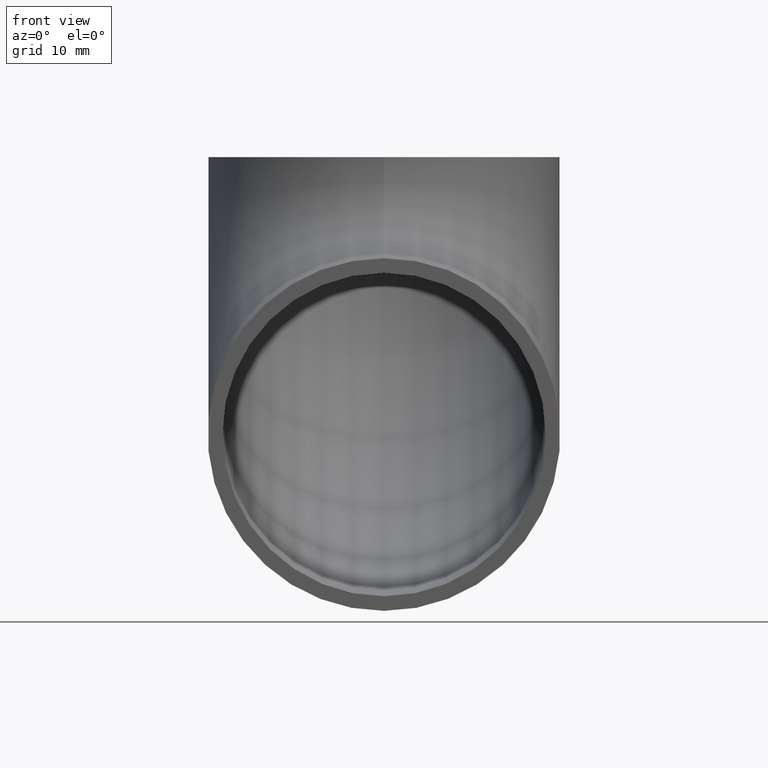
[diagram: clean part render]
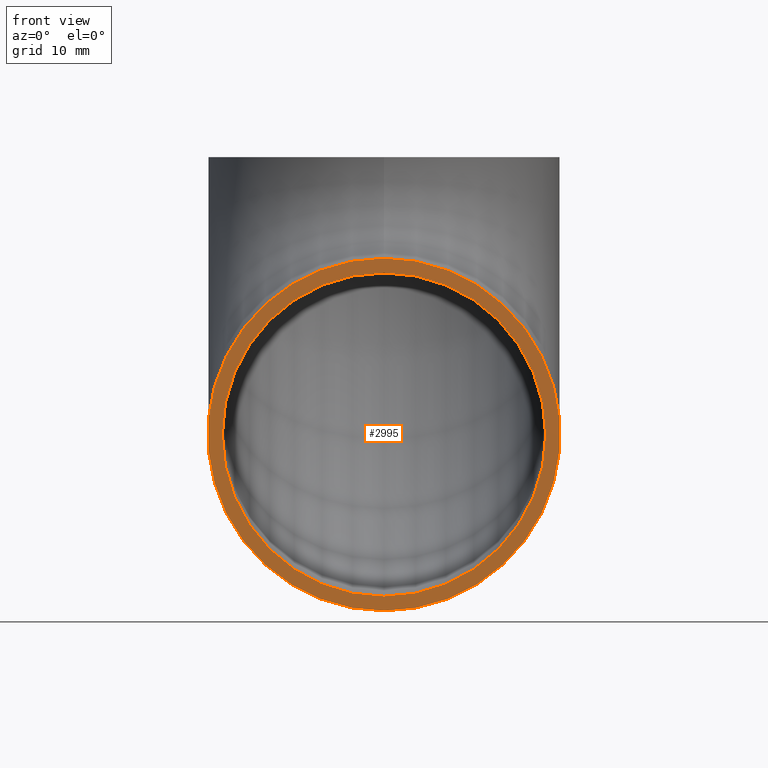
[diagram: same view with one face highlighted and labeled with its STEP entity id]
A machine part, front view. The second image highlights one B-rep face of the part: STEP entity #2995.
In plain terms, the highlighted planar face has unit normal (0, 1, 0).
Its self-contained STEP definition (entity closure, byte-faithful):
#648 = CARTESIAN_POINT ( 'NONE',  ( 0.000000000000000000, 0.000000000000000000, -15.85000000000000320 ) ) ;
#1746 = ORIENTED_EDGE ( 'NONE', *, *, #11787, .T. ) ;
#2829 = VERTEX_POINT ( 'NONE', #4312 ) ;
#2995 = ADVANCED_FACE ( 'NONE', ( #6739, #5734 ), #5667, .F. ) ;
#3020 = AXIS2_PLACEMENT_3D ( 'NONE', #10497, #7714, #5035 ) ;
#3192 = DIRECTION ( 'NONE',  ( 0.000000000000000000, 0.000000000000000000, 1.000000000000000000 ) ) ;
#3517 = AXIS2_PLACEMENT_3D ( 'NONE', #9245, #3782, #10083 ) ;
#3782 = DIRECTION ( 'NONE',  ( 0.000000000000000000, 1.000000000000000000, 0.000000000000000000 ) ) ;
#4312 = CARTESIAN_POINT ( 'NONE',  ( 0.000000000000000000, 0.000000000000000000, -13.85000000000000142 ) ) ;
#5035 = DIRECTION ( 'NONE',  ( 0.000000000000000000, 0.000000000000000000, 1.000000000000000000 ) ) ;
#5471 = EDGE_CURVE ( 'NONE', #2829, #2829, #10118, .T. ) ;
#5667 = PLANE ( 'NONE',  #3517 ) ;
#5734 = FACE_OUTER_BOUND ( 'NONE', #9222, .T. ) ;
#5832 = DIRECTION ( 'NONE',  ( 0.000000000000000000, 1.000000000000000000, 0.000000000000000000 ) ) ;
#5913 = ORIENTED_EDGE ( 'NONE', *, *, #5471, .F. ) ;
#6739 = FACE_BOUND ( 'NONE', #7768, .T. ) ;
#6765 = AXIS2_PLACEMENT_3D ( 'NONE', #6808, #5832, #3192 ) ;
#6808 = CARTESIAN_POINT ( 'NONE',  ( 0.000000000000000000, 0.000000000000000000, -38.00000000000000000 ) ) ;
#7129 = CIRCLE ( 'NONE', #3020, 22.14999999999999503 ) ;
#7714 = DIRECTION ( 'NONE',  ( 0.000000000000000000, 1.000000000000000000, 0.000000000000000000 ) ) ;
#7768 = EDGE_LOOP ( 'NONE', ( #1746 ) ) ;
#9118 = VERTEX_POINT ( 'NONE', #648 ) ;
#9222 = EDGE_LOOP ( 'NONE', ( #5913 ) ) ;
#9245 = CARTESIAN_POINT ( 'NONE',  ( 0.000000000000000000, 0.000000000000000000, -38.00000000000000000 ) ) ;
#10083 = DIRECTION ( 'NONE',  ( 0.000000000000000000, -0.000000000000000000, 1.000000000000000000 ) ) ;
#10118 = CIRCLE ( 'NONE', #6765, 24.14999999999999858 ) ;
#10497 = CARTESIAN_POINT ( 'NONE',  ( 0.000000000000000000, 0.000000000000000000, -38.00000000000000000 ) ) ;
#11787 = EDGE_CURVE ( 'NONE', #9118, #9118, #7129, .T. ) ;